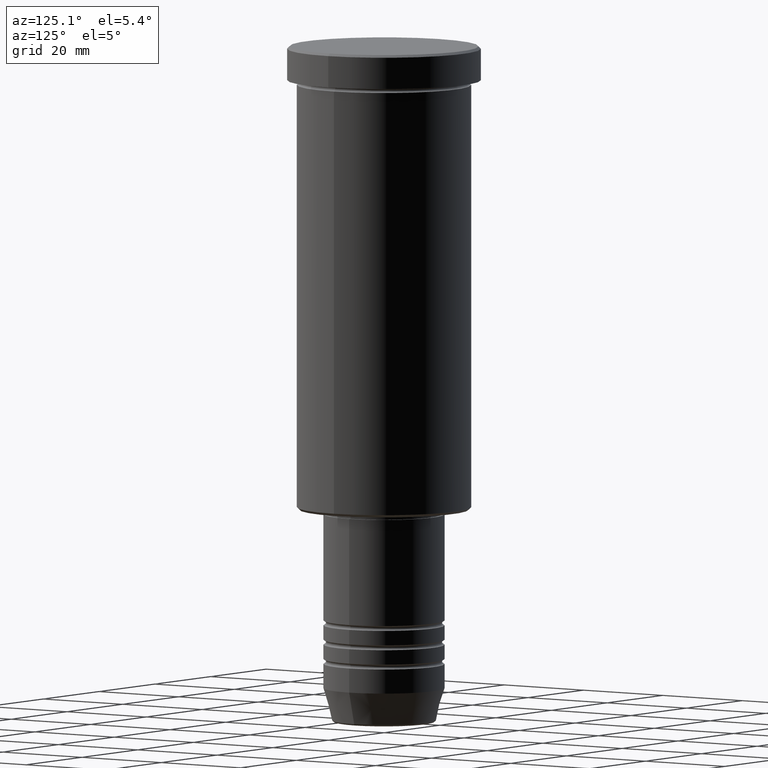
[diagram: clean part render]
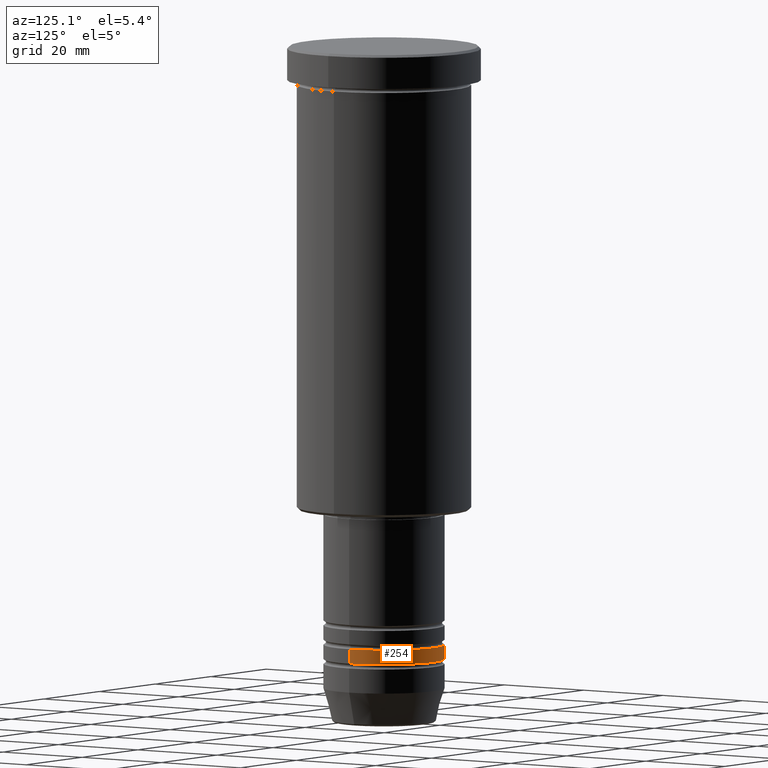
[diagram: same view with one face highlighted and labeled with its STEP entity id]
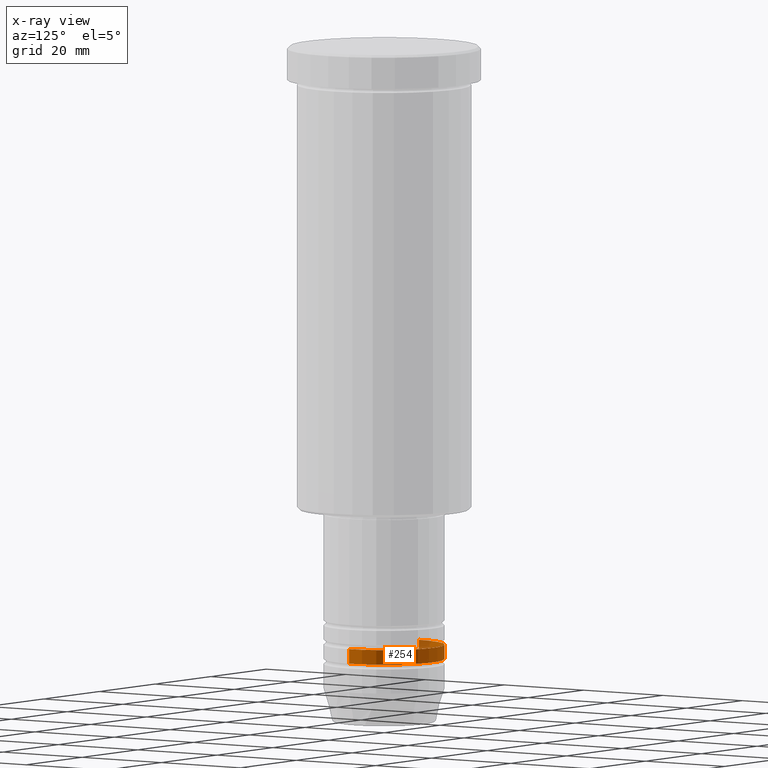
[diagram: x-ray of the same camera — body ghosted, the highlighted face saturated]
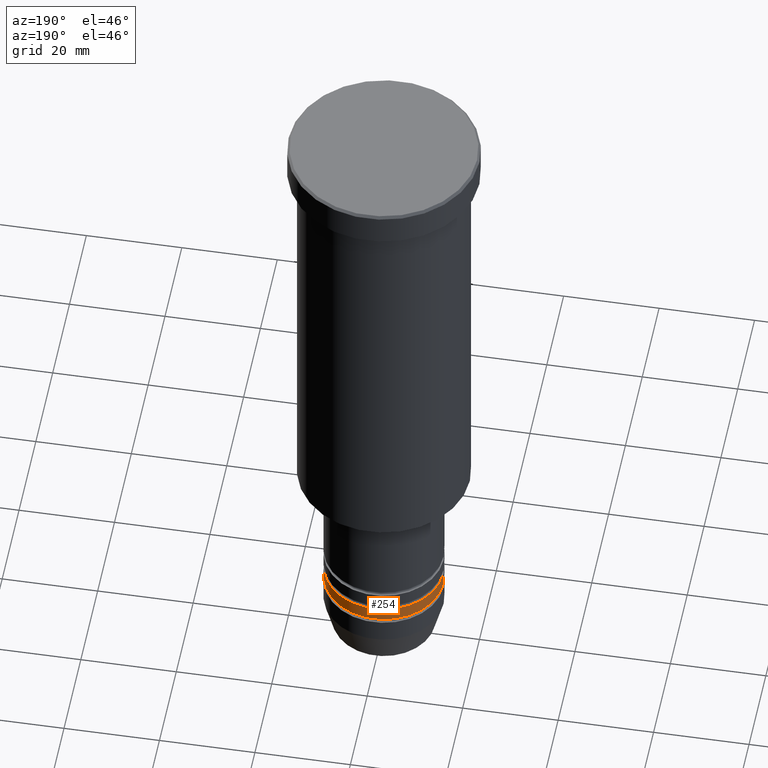
[diagram: same view with one face highlighted and labeled with its STEP entity id]
A machine part, auxiliary view. The second image highlights one B-rep face of the part: STEP entity #254.
The next image is the same camera in x-ray: the body ghosted, the highlighted face saturated — about 6% of this face is hidden behind the body in this view.
A second angle (auxiliary view) of the same face is appended — the face is thin or edge-on in the first view.
In plain terms, the highlighted cylindrical surface (partial cylindrical patch) has radius 12.5 mm, axis along (-0, -0, 1).
Its self-contained STEP definition (entity closure, byte-faithful):
#50 = AXIS2_PLACEMENT_3D ( 'NONE', #506, #950, #786 ) ;
#51 = CARTESIAN_POINT ( 'NONE',  ( 12.50000000000000000, 0.000000000000000000, 0.000000000000000000 ) ) ;
#73 = ORIENTED_EDGE ( 'NONE', *, *, #794, .T. ) ;
#91 = CARTESIAN_POINT ( 'NONE',  ( -12.50000000000000000, 1.530808498934191521E-15, -127.0000000000000000 ) ) ;
#105 = DIRECTION ( 'NONE',  ( -0.000000000000000000, -0.000000000000000000, 1.000000000000000000 ) ) ;
#162 = CARTESIAN_POINT ( 'NONE',  ( 0.000000000000000000, 0.000000000000000000, -124.0000000000000000 ) ) ;
#182 = DIRECTION ( 'NONE',  ( -0.000000000000000000, -0.000000000000000000, 1.000000000000000000 ) ) ;
#229 = DIRECTION ( 'NONE',  ( 1.000000000000000000, 0.000000000000000000, 0.000000000000000000 ) ) ;
#254 = ADVANCED_FACE ( 'NONE', ( #764 ), #912, .T. ) ;
#387 = VECTOR ( 'NONE', #182, 1000.000000000000000 ) ;
#423 = DIRECTION ( 'NONE',  ( -0.000000000000000000, -0.000000000000000000, 1.000000000000000000 ) ) ;
#477 = VERTEX_POINT ( 'NONE', #91 ) ;
#506 = CARTESIAN_POINT ( 'NONE',  ( 0.000000000000000000, 0.000000000000000000, -127.0000000000000000 ) ) ;
#533 = AXIS2_PLACEMENT_3D ( 'NONE', #162, #962, #697 ) ;
#540 = ORIENTED_EDGE ( 'NONE', *, *, #1043, .T. ) ;
#543 = ORIENTED_EDGE ( 'NONE', *, *, #880, .F. ) ;
#565 = VERTEX_POINT ( 'NONE', #973 ) ;
#648 = CARTESIAN_POINT ( 'NONE',  ( -12.50000000000000000, 1.530808498934191521E-15, -124.0000000000000000 ) ) ;
#657 = EDGE_LOOP ( 'NONE', ( #73, #540, #543, #787 ) ) ;
#697 = DIRECTION ( 'NONE',  ( 1.000000000000000000, 0.000000000000000000, 0.000000000000000000 ) ) ;
#709 = VECTOR ( 'NONE', #423, 1000.000000000000000 ) ;
#715 = CARTESIAN_POINT ( 'NONE',  ( -12.50000000000000000, 1.530808498934191521E-15, 0.000000000000000000 ) ) ;
#722 = CIRCLE ( 'NONE', #50, 12.50000000000000000 ) ;
#737 = AXIS2_PLACEMENT_3D ( 'NONE', #1030, #105, #229 ) ;
#764 = FACE_OUTER_BOUND ( 'NONE', #657, .T. ) ;
#786 = DIRECTION ( 'NONE',  ( 1.000000000000000000, 0.000000000000000000, 0.000000000000000000 ) ) ;
#787 = ORIENTED_EDGE ( 'NONE', *, *, #922, .F. ) ;
#794 = EDGE_CURVE ( 'NONE', #565, #477, #722, .T. ) ;
#871 = LINE ( 'NONE', #51, #709 ) ;
#880 = EDGE_CURVE ( 'NONE', #1089, #1179, #979, .T. ) ;
#912 = CYLINDRICAL_SURFACE ( 'NONE', #737, 12.50000000000000000 ) ;
#922 = EDGE_CURVE ( 'NONE', #565, #1089, #871, .T. ) ;
#950 = DIRECTION ( 'NONE',  ( -0.000000000000000000, -0.000000000000000000, 1.000000000000000000 ) ) ;
#962 = DIRECTION ( 'NONE',  ( -0.000000000000000000, -0.000000000000000000, 1.000000000000000000 ) ) ;
#973 = CARTESIAN_POINT ( 'NONE',  ( 12.50000000000000000, 0.000000000000000000, -127.0000000000000000 ) ) ;
#979 = CIRCLE ( 'NONE', #533, 12.50000000000000000 ) ;
#1013 = CARTESIAN_POINT ( 'NONE',  ( 12.50000000000000000, 0.000000000000000000, -124.0000000000000000 ) ) ;
#1030 = CARTESIAN_POINT ( 'NONE',  ( 0.000000000000000000, 0.000000000000000000, 0.000000000000000000 ) ) ;
#1043 = EDGE_CURVE ( 'NONE', #477, #1179, #1169, .T. ) ;
#1089 = VERTEX_POINT ( 'NONE', #1013 ) ;
#1169 = LINE ( 'NONE', #715, #387 ) ;
#1179 = VERTEX_POINT ( 'NONE', #648 ) ;